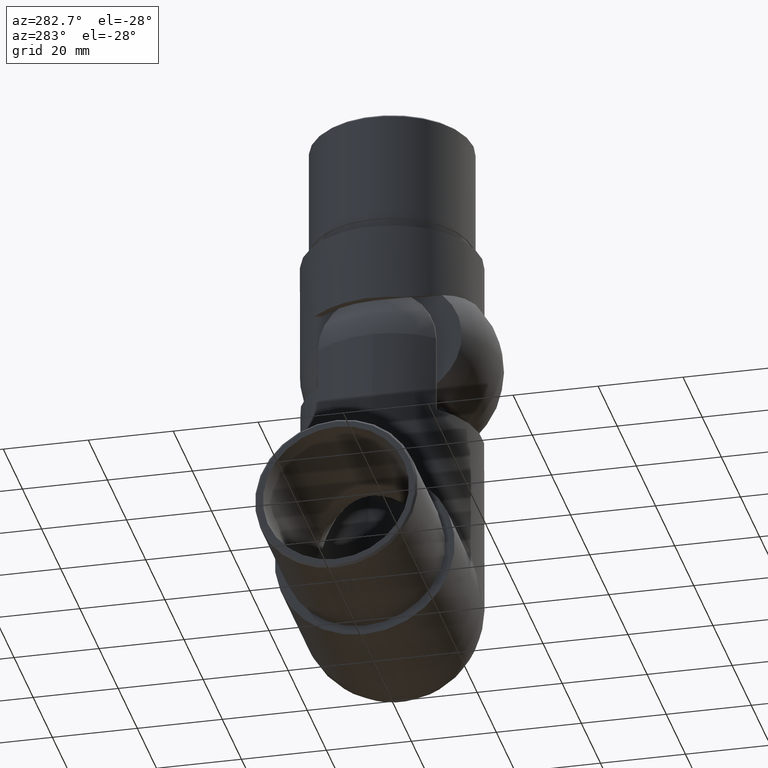
[diagram: clean part render]
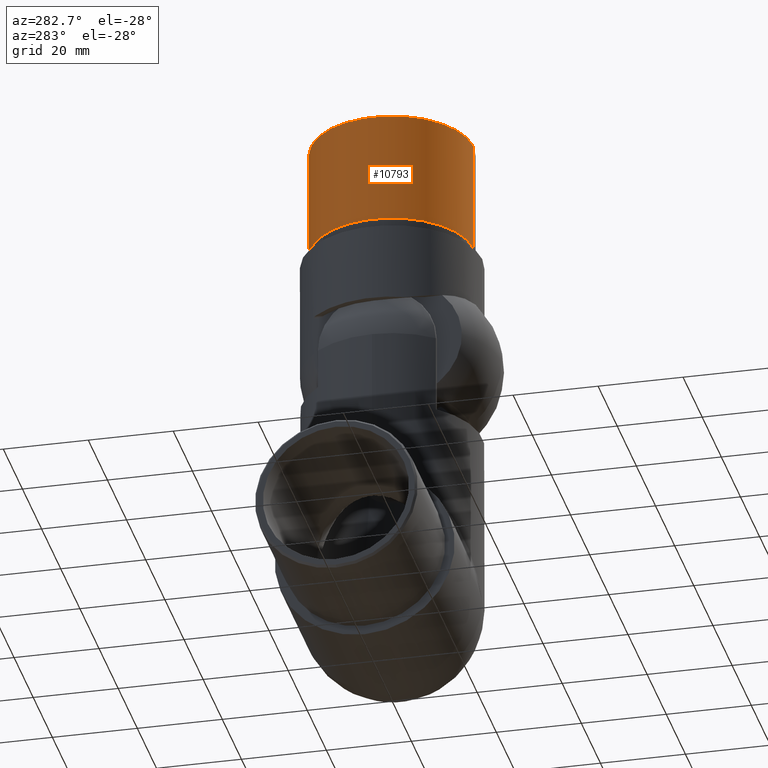
[diagram: same view with one face highlighted and labeled with its STEP entity id]
A machine part, auxiliary view. The second image highlights one B-rep face of the part: STEP entity #10793.
In plain terms, the highlighted cylindrical surface (partial cylindrical patch) has radius 19.15 mm, axis along (0, 0, -1).
Its self-contained STEP definition (entity closure, byte-faithful):
#568 = VECTOR ( 'NONE', #21982, 1000.000000000000000 ) ;
#1065 = CIRCLE ( 'NONE', #18223, 19.14999999999999858 ) ;
#2047 = VERTEX_POINT ( 'NONE', #5648 ) ;
#3600 = CARTESIAN_POINT ( 'NONE',  ( 2.345198620367181006E-15, 0.5000000000000143219, -19.14999999999999858 ) ) ;
#3655 = ORIENTED_EDGE ( 'NONE', *, *, #5168, .T. ) ;
#5168 = EDGE_CURVE ( 'NONE', #2047, #12674, #1065, .T. ) ;
#5644 = ORIENTED_EDGE ( 'NONE', *, *, #15919, .F. ) ;
#5648 = CARTESIAN_POINT ( 'NONE',  ( 0.000000000000000000, 0.5000000000000143219, 19.14999999999999858 ) ) ;
#7369 = CYLINDRICAL_SURFACE ( 'NONE', #17868, 19.14999999999999858 ) ;
#7931 = VERTEX_POINT ( 'NONE', #15985 ) ;
#8414 = FACE_OUTER_BOUND ( 'NONE', #20293, .T. ) ;
#8497 = CARTESIAN_POINT ( 'NONE',  ( 0.000000000000000000, 0.000000000000000000, 19.14999999999999858 ) ) ;
#9577 = AXIS2_PLACEMENT_3D ( 'NONE', #13484, #15242, #13628 ) ;
#9880 = CIRCLE ( 'NONE', #9577, 19.14999999999999858 ) ;
#10793 = ADVANCED_FACE ( 'NONE', ( #8414 ), #7369, .T. ) ;
#12674 = VERTEX_POINT ( 'NONE', #3600 ) ;
#12888 = DIRECTION ( 'NONE',  ( -0.000000000000000000, 1.000000000000000000, -0.000000000000000000 ) ) ;
#13484 = CARTESIAN_POINT ( 'NONE',  ( 0.000000000000000000, 27.00000000000000000, 0.000000000000000000 ) ) ;
#13628 = DIRECTION ( 'NONE',  ( 0.000000000000000000, 0.000000000000000000, -1.000000000000000000 ) ) ;
#14099 = DIRECTION ( 'NONE',  ( -0.000000000000000000, 1.000000000000000000, -0.000000000000000000 ) ) ;
#14155 = LINE ( 'NONE', #19398, #16880 ) ;
#14633 = CARTESIAN_POINT ( 'NONE',  ( 0.000000000000000000, 27.00000000000000000, 19.14999999999999858 ) ) ;
#15242 = DIRECTION ( 'NONE',  ( 0.000000000000000000, -1.000000000000000000, 0.000000000000000000 ) ) ;
#15258 = CARTESIAN_POINT ( 'NONE',  ( 0.000000000000000000, 0.5000000000000143219, 0.000000000000000000 ) ) ;
#15437 = ORIENTED_EDGE ( 'NONE', *, *, #16301, .T. ) ;
#15919 = EDGE_CURVE ( 'NONE', #2047, #16141, #17395, .T. ) ;
#15985 = CARTESIAN_POINT ( 'NONE',  ( 2.345198620367181006E-15, 27.00000000000000000, -19.14999999999999858 ) ) ;
#16061 = EDGE_CURVE ( 'NONE', #12674, #7931, #14155, .T. ) ;
#16141 = VERTEX_POINT ( 'NONE', #14633 ) ;
#16301 = EDGE_CURVE ( 'NONE', #7931, #16141, #9880, .T. ) ;
#16880 = VECTOR ( 'NONE', #14099, 1000.000000000000000 ) ;
#16904 = DIRECTION ( 'NONE',  ( 0.000000000000000000, 0.000000000000000000, -1.000000000000000000 ) ) ;
#17395 = LINE ( 'NONE', #8497, #568 ) ;
#17868 = AXIS2_PLACEMENT_3D ( 'NONE', #17990, #12888, #21142 ) ;
#17990 = CARTESIAN_POINT ( 'NONE',  ( 0.000000000000000000, 0.000000000000000000, 0.000000000000000000 ) ) ;
#18223 = AXIS2_PLACEMENT_3D ( 'NONE', #15258, #21971, #16904 ) ;
#19398 = CARTESIAN_POINT ( 'NONE',  ( 2.345198620367181006E-15, 0.000000000000000000, -19.14999999999999858 ) ) ;
#20293 = EDGE_LOOP ( 'NONE', ( #3655, #21379, #15437, #5644 ) ) ;
#21142 = DIRECTION ( 'NONE',  ( 0.000000000000000000, 0.000000000000000000, 1.000000000000000000 ) ) ;
#21379 = ORIENTED_EDGE ( 'NONE', *, *, #16061, .T. ) ;
#21971 = DIRECTION ( 'NONE',  ( 0.000000000000000000, 1.000000000000000000, 0.000000000000000000 ) ) ;
#21982 = DIRECTION ( 'NONE',  ( -0.000000000000000000, 1.000000000000000000, -0.000000000000000000 ) ) ;